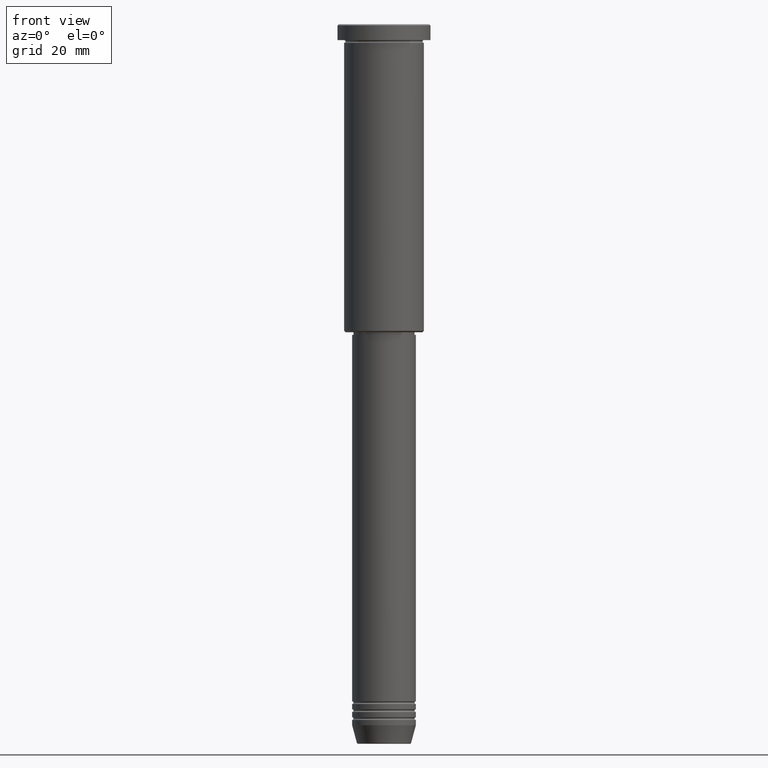
[diagram: clean part render]
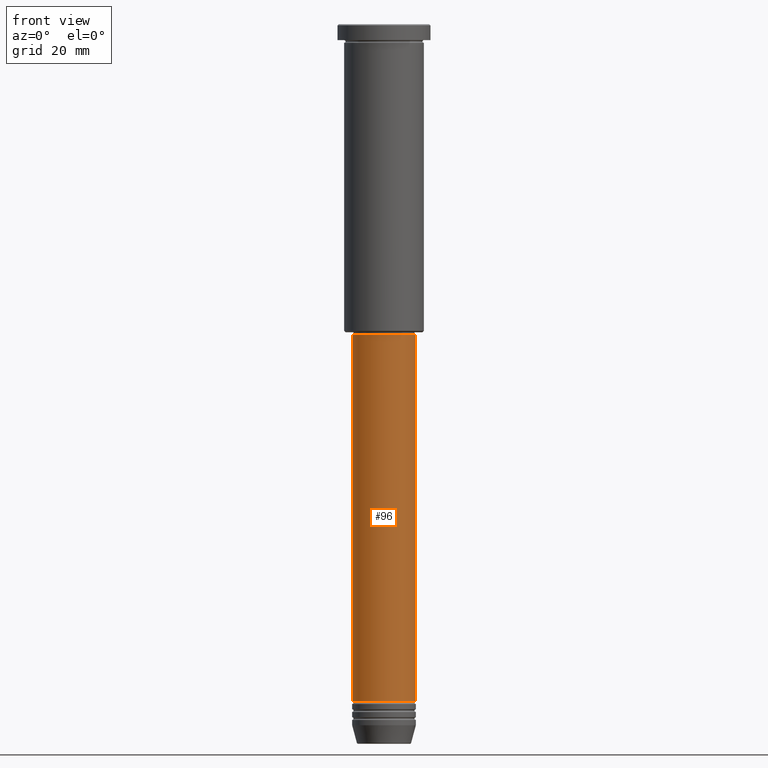
[diagram: same view with one face highlighted and labeled with its STEP entity id]
A machine part, front view. The second image highlights one B-rep face of the part: STEP entity #96.
In plain terms, the highlighted cylindrical surface (edge-blend (fillet) strip) has radius 12 mm, axis along (-0, -0, 1).
Its self-contained STEP definition (entity closure, byte-faithful):
#29 = EDGE_LOOP ( 'NONE', ( #703, #496, #281, #969 ) ) ;
#37 = CARTESIAN_POINT ( 'NONE',  ( -12.00000000000000000, 1.469576158976823947E-15, 0.000000000000000000 ) ) ;
#44 = CIRCLE ( 'NONE', #135, 12.00000000000000000 ) ;
#96 = ADVANCED_FACE ( 'NONE', ( #802 ), #1162, .T. ) ;
#135 = AXIS2_PLACEMENT_3D ( 'NONE', #807, #874, #719 ) ;
#212 = AXIS2_PLACEMENT_3D ( 'NONE', #815, #907, #897 ) ;
#281 = ORIENTED_EDGE ( 'NONE', *, *, #586, .T. ) ;
#283 = EDGE_CURVE ( 'NONE', #425, #833, #500, .T. ) ;
#296 = DIRECTION ( 'NONE',  ( 1.000000000000000000, 0.000000000000000000, 0.000000000000000000 ) ) ;
#414 = DIRECTION ( 'NONE',  ( -0.000000000000000000, -0.000000000000000000, 1.000000000000000000 ) ) ;
#418 = EDGE_CURVE ( 'NONE', #833, #1158, #44, .T. ) ;
#425 = VERTEX_POINT ( 'NONE', #511 ) ;
#496 = ORIENTED_EDGE ( 'NONE', *, *, #636, .T. ) ;
#500 = LINE ( 'NONE', #37, #841 ) ;
#511 = CARTESIAN_POINT ( 'NONE',  ( -12.00000000000000000, 1.469576158976823947E-15, -255.0000000000000000 ) ) ;
#566 = CARTESIAN_POINT ( 'NONE',  ( 12.00000000000000000, 0.000000000000000000, -117.0000000000000000 ) ) ;
#586 = EDGE_CURVE ( 'NONE', #848, #1158, #835, .T. ) ;
#636 = EDGE_CURVE ( 'NONE', #425, #848, #1092, .T. ) ;
#703 = ORIENTED_EDGE ( 'NONE', *, *, #283, .F. ) ;
#719 = DIRECTION ( 'NONE',  ( 1.000000000000000000, 0.000000000000000000, 0.000000000000000000 ) ) ;
#802 = FACE_OUTER_BOUND ( 'NONE', #29, .T. ) ;
#807 = CARTESIAN_POINT ( 'NONE',  ( 0.000000000000000000, 0.000000000000000000, -117.0000000000000000 ) ) ;
#815 = CARTESIAN_POINT ( 'NONE',  ( 0.000000000000000000, 0.000000000000000000, 0.000000000000000000 ) ) ;
#833 = VERTEX_POINT ( 'NONE', #873 ) ;
#835 = LINE ( 'NONE', #910, #1055 ) ;
#841 = VECTOR ( 'NONE', #414, 1000.000000000000000 ) ;
#848 = VERTEX_POINT ( 'NONE', #1069 ) ;
#873 = CARTESIAN_POINT ( 'NONE',  ( -12.00000000000000000, 1.469576158976823947E-15, -117.0000000000000000 ) ) ;
#874 = DIRECTION ( 'NONE',  ( -0.000000000000000000, -0.000000000000000000, 1.000000000000000000 ) ) ;
#897 = DIRECTION ( 'NONE',  ( 1.000000000000000000, 0.000000000000000000, 0.000000000000000000 ) ) ;
#907 = DIRECTION ( 'NONE',  ( -0.000000000000000000, -0.000000000000000000, 1.000000000000000000 ) ) ;
#910 = CARTESIAN_POINT ( 'NONE',  ( 12.00000000000000000, 0.000000000000000000, 0.000000000000000000 ) ) ;
#969 = ORIENTED_EDGE ( 'NONE', *, *, #418, .F. ) ;
#997 = AXIS2_PLACEMENT_3D ( 'NONE', #1109, #1091, #296 ) ;
#1055 = VECTOR ( 'NONE', #1180, 1000.000000000000000 ) ;
#1069 = CARTESIAN_POINT ( 'NONE',  ( 12.00000000000000000, 0.000000000000000000, -255.0000000000000000 ) ) ;
#1091 = DIRECTION ( 'NONE',  ( -0.000000000000000000, -0.000000000000000000, 1.000000000000000000 ) ) ;
#1092 = CIRCLE ( 'NONE', #997, 12.00000000000000000 ) ;
#1109 = CARTESIAN_POINT ( 'NONE',  ( 0.000000000000000000, 0.000000000000000000, -255.0000000000000000 ) ) ;
#1158 = VERTEX_POINT ( 'NONE', #566 ) ;
#1162 = CYLINDRICAL_SURFACE ( 'NONE', #212, 12.00000000000000000 ) ;
#1180 = DIRECTION ( 'NONE',  ( -0.000000000000000000, -0.000000000000000000, 1.000000000000000000 ) ) ;